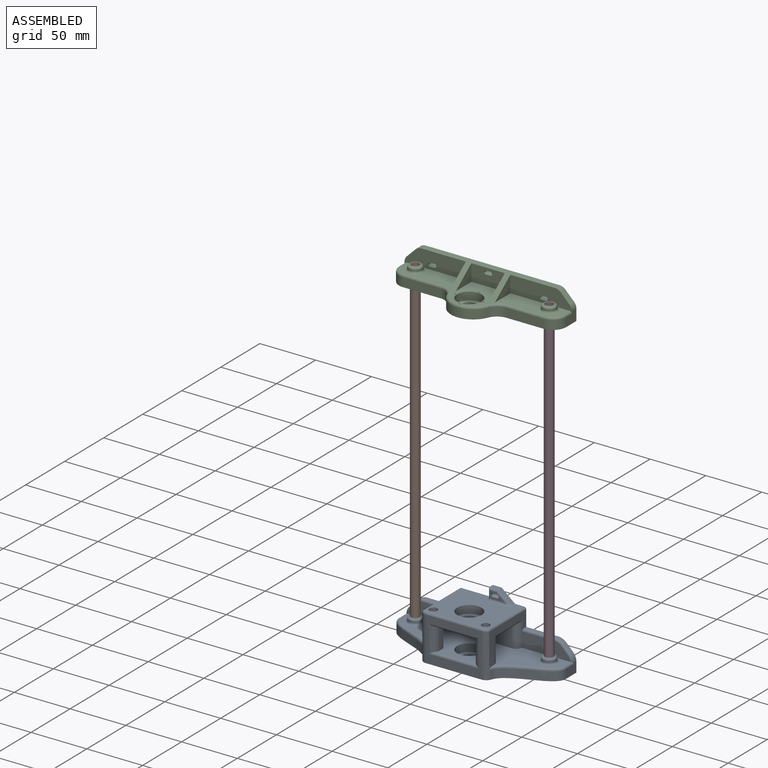
[diagram: assembled view]
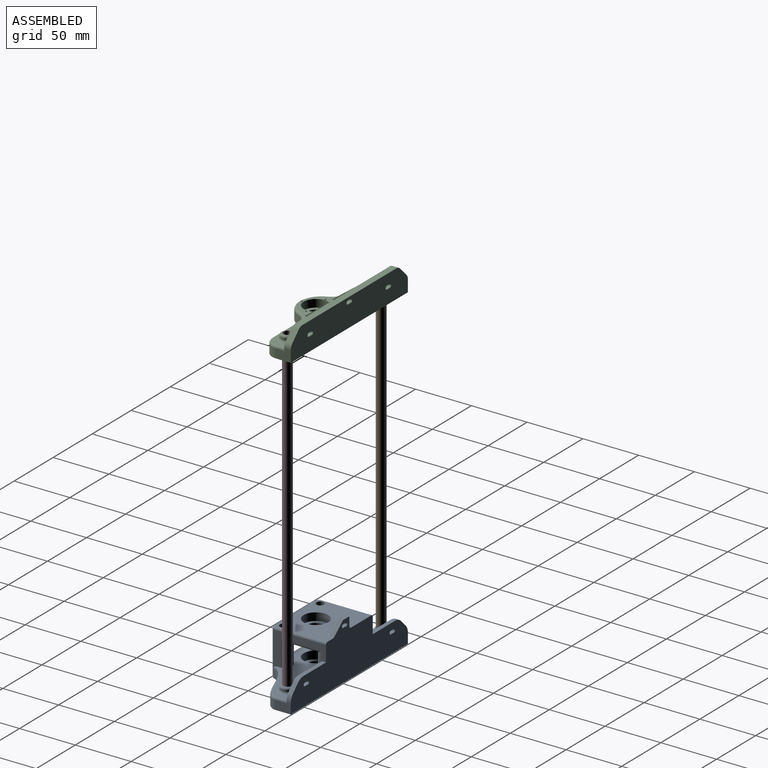
[diagram: assembled view, second angle]
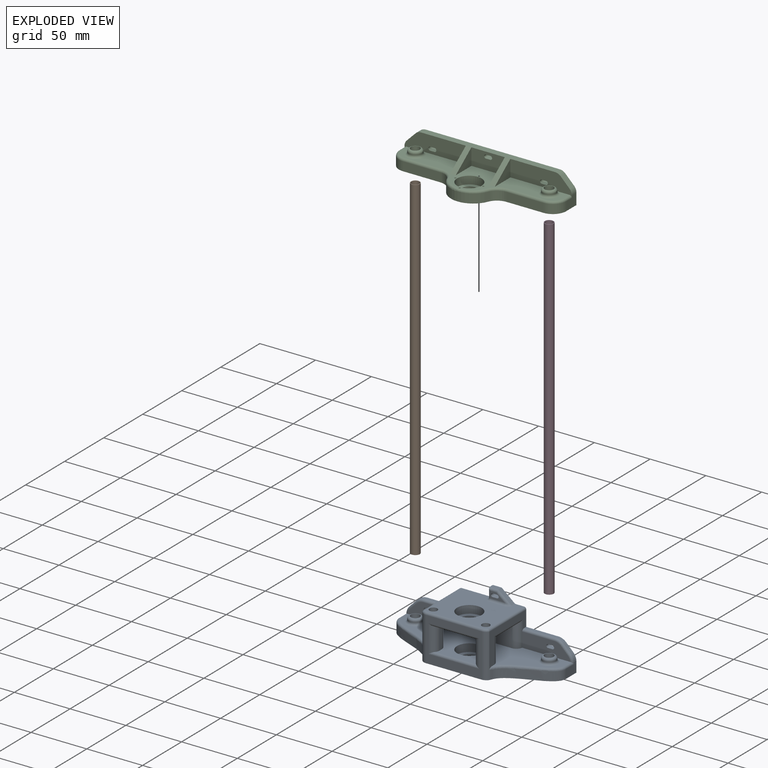
[diagram: exploded view]
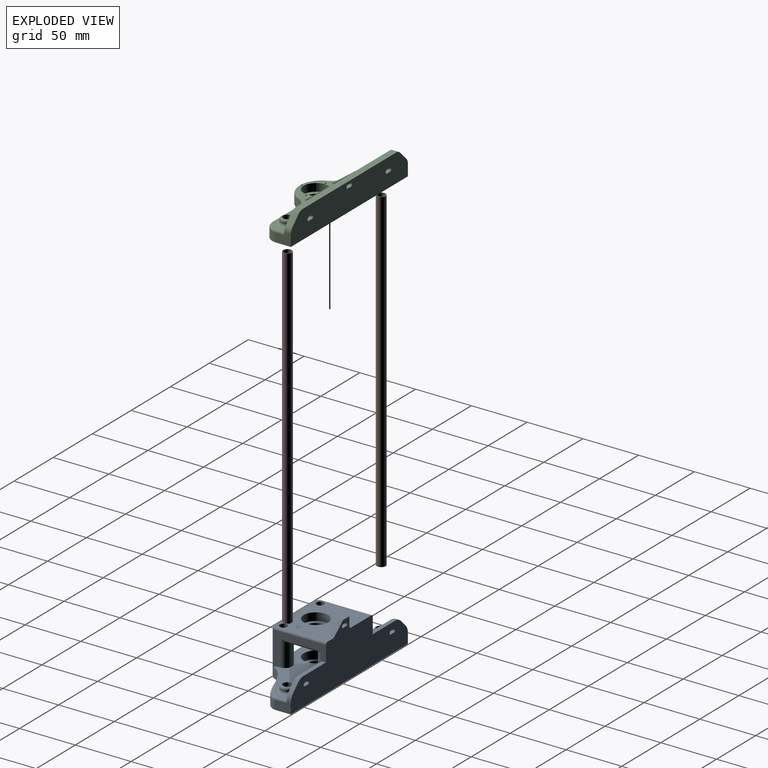
[diagram: exploded view, second angle]
ASSEMBLY  parts=4 mates=3
PART A: 104 faces, bbox 152.3x51.2x51.7 mm
  f0: plane 150x51mm, normal (0,1,0), area 4639.4mm2, adj f4,f6,f7,f13,f17,f20,f36,f37
  f1: plane 43x13mm, normal (0,-1,0), area 479.7mm2, adj f5,f49,f50,f51,f52,f65,f69,f71
  f2: plane 43x13mm, normal (0,-1,0), area 479.7mm2, adj f5,f45,f46,f47,f48,f66,f77,f79
  f3: plane 12.48x6mm, normal (0,-1,0), area 34.2mm2, adj f41,f42,f43,f44,f89,f91,f92,f93
  f4: plane 56x48mm, normal (0,0,1), area 2051.9mm2, adj f0,f28,f30,f32,f83,f84,f85,f86
  f5: plane 146x43mm, normal (0,0,1), area 3259.6mm2, adj f1,f2,f6,f7,f12,f22,f23,f24
  f6: plane 48.01x31.69mm, normal (1,0,0), area 463.3mm2, adj f0,f5,f37,f60,f66,f68,f76,f77
  f7: plane 48.01x31.69mm, normal (-1,0,0), area 463.3mm2, adj f0,f5,f36,f64,f65,f67,f69,f70
  f8: cylinder r=1.75mm len=10mm, axis (0,0,1), area 110mm2, adj f20,f33
  f9: cylinder r=1.75mm len=10mm, axis (0,0,1), area 110mm2, adj f20,f31
  f10: cylinder r=7.5mm len=15mm, axis (0,0,1), area 141.4mm2, adj f21,f29
  f11: cylinder r=7.5mm len=15mm, axis (0,0,1), area 141.4mm2, adj f20,f27
  f12: plane 48x21mm, normal (0,-1,0), area 1008mm2, adj f5,f21,f65,f66
  f13: plane 13.5x8mm, normal (-1,0,0), area 108mm2, adj f0,f14,f20,f74
  f14: extruded ~44.33x32.47mm, area 458.1mm2, adj f13,f20,f67,f72
  f15: plane 50x39mm, normal (0,-1,0), area 800.1mm2, adj f20,f59,f62,f67,f68,f86,f96,f99
  f16: extruded ~44.33x32.47mm, area 458.1mm2, adj f17,f20,f68,f78
  f17: plane 13.5x8mm, normal (1,0,0), area 108mm2, adj f0,f16,f20,f80
  f18: cylinder r=4.05mm len=15mm, axis (0,0,-1), area 381.7mm2, adj f20,f103
  f19: cylinder r=4.05mm len=15mm, axis (0,0,-1), area 381.7mm2, adj f20,f101
  f20: plane 150x50mm, normal (0,0,-1), area 5455.3mm2, adj f0,f8,f9,f11,f13,f14,f15,f16
  f21: plane 56x39.53mm, normal (0,0,-1), area 1692.3mm2, adj f10,f12,f22,f23,f24,f25,f59,f60
  f22: plane 21x1mm, normal (0,1,0), area 21mm2, adj f5,f21,f63,f64
  f23: plane 21x3mm, normal (1,0,0), area 63mm2, adj f5,f21,f62,f63
  f24: plane 21x1mm, normal (0,1,0), area 21mm2, adj f5,f21,f60,f61
  f25: plane 21x3mm, normal (-1,0,0), area 63mm2, adj f5,f21,f59,f61
  f26: cylinder r=11.05mm len=22.1mm, axis (0,0,1), area 486mm2, adj f5,f27
  f27: plane 22.1x22.1mm, normal (0,0,1), area 206.9mm2, adj f11,f26
  f28: cylinder r=11.05mm len=22.1mm, axis (0,0,1), area 486mm2, adj f4,f29
  f29: plane 22.1x22.1mm, normal (0,0,1), area 206.9mm2, adj f10,f28
  f30: cylinder r=3.5mm len=31mm, axis (0,0,1), area 681.7mm2, adj f4,f31
  f31: plane 7x7mm, normal (0,0,1), area 28.9mm2, adj f9,f30
  f32: cylinder r=3.5mm len=31mm, axis (0,0,1), area 681.7mm2, adj f4,f33
  f33: plane 7x7mm, normal (0,0,1), area 28.9mm2, adj f8,f32
  f34: cylinder r=6mm len=12mm, axis (0,0,-1), area 37.7mm2, adj f102,f103
  f35: cylinder r=6mm len=12mm, axis (0,0,-1), area 37.7mm2, adj f100,f101
  f36: plane 28.86x3mm, normal (0,0,1), area 86.6mm2, adj f0,f7,f55,f69
  f37: plane 28.86x3mm, normal (0,0,1), area 86.6mm2, adj f0,f6,f58,f77
  f38: plane 8x4mm, normal (-1,0,0), area 32mm2, adj f0,f39,f88,f89
  f39: plane 8x4mm, normal (0,0,1), area 32mm2, adj f0,f38,f40,f91
  f40: plane 11.44x9.54mm, normal (0.64,0,0.77), area 59.6mm2, adj f0,f39,f93,f95
  f41: plane 6x4mm, normal (0,0,-1), area 24mm2, adj f0,f3,f42,f43
  f42: cylinder r=1.5mm len=6mm, axis (0,1,0), area 28.3mm2, adj f0,f3,f41,f44
  f43: cylinder r=1.5mm len=6mm, axis (0,1,0), area 28.3mm2, adj f0,f3,f41,f44
  f44: plane 6x4mm, normal (0,0,1), area 24mm2, adj f0,f3,f42,f43
  f45: cylinder r=1.5mm len=5mm, axis (0,1,0), area 23.6mm2, adj f0,f2,f46,f48
  f46: plane 5x4mm, normal (0,0,-1), area 20mm2, adj f0,f2,f45,f47
  f47: cylinder r=1.5mm len=5mm, axis (0,1,0), area 23.6mm2, adj f0,f2,f46,f48
  f48: plane 5x4mm, normal (0,0,1), area 20mm2, adj f0,f2,f45,f47
  f49: cylinder r=1.5mm len=5mm, axis (0,1,0), area 23.6mm2, adj f0,f1,f50,f52
  f50: plane 5x4mm, normal (0,0,-1), area 20mm2, adj f0,f1,f49,f51
  f51: cylinder r=1.5mm len=5mm, axis (0,1,0), area 23.6mm2, adj f0,f1,f50,f52
  f52: plane 5x4mm, normal (0,0,1), area 20mm2, adj f0,f1,f49,f51
  f53: plane 6.14x6.14mm, normal (0.71,0,0.71), area 26.1mm2, adj f0,f57,f58,f81
  f54: plane 6.14x6.14mm, normal (-0.71,0,0.71), area 26.1mm2, adj f0,f55,f56,f73
  f55: cylinder r=10mm len=7.07mm, axis (0,1,0), area 23.6mm2, adj f0,f36,f54,f71
  f56: cylinder r=10mm len=7.66mm, axis (0,1,0), area 25.3mm2, adj f0,f54,f74,f75
  f57: cylinder r=10mm len=7.66mm, axis (0,-1,0), area 25.3mm2, adj f0,f53,f80,f82
  f58: cylinder r=10mm len=7.07mm, axis (0,1,0), area 23.6mm2, adj f0,f37,f53,f79
  f59: cylinder r=6mm len=25mm, axis (0,0,-1), area 208mm2, adj f5,f15,f21,f25,f96,f99
  f60: cylinder r=6mm len=23mm, axis (0,0,1), area 203mm2, adj f5,f6,f21,f24,f98
  f61: cylinder r=6mm len=21mm, axis (0,0,1), area 197.9mm2, adj f5,f21,f24,f25
  f62: cylinder r=6mm len=25mm, axis (0,0,1), area 208mm2, adj f5,f15,f21,f23,f96,f99
  f63: cylinder r=6mm len=21mm, axis (0,0,1), area 197.9mm2, adj f5,f21,f22,f23
  f64: cylinder r=6mm len=23mm, axis (0,0,1), area 203mm2, adj f5,f7,f21,f22,f97
  f65: cylinder r=6mm len=23mm, axis (0,0,-1), area 189mm2, adj f1,f5,f7,f12,f21,f69,f97
  f66: cylinder r=6mm len=23mm, axis (0,0,1), area 189mm2, adj f2,f5,f6,f12,f21,f77,f98
  f67: cylinder r=6mm len=39mm, axis (0,0,-1), area 242.5mm2, adj f7,f14,f15,f20,f70,f87
  f68: cylinder r=6mm len=39mm, axis (0,0,-1), area 242.5mm2, adj f6,f15,f16,f20,f76,f84
  f69: cylinder r=2mm len=28.94mm, axis (1,0,0), area 90.7mm2, adj f1,f7,f36,f65,f71
  f70: torus R=4mm, axis (0,0,1), area 1.3mm2, adj f7,f67,f72
  f71: torus R=8mm, axis (0,1,0), area 22.9mm2, adj f1,f55,f69,f73
  f72: bspline ~46.47x34.92mm, area 177.2mm2, adj f5,f7,f14,f70,f74
  f73: cylinder r=2mm len=7.56mm, axis (0.71,0,0.71), area 27.3mm2, adj f1,f54,f71,f75
  f74: cylinder r=2mm len=13.5mm, axis (0,-1,0), area 29.9mm2, adj f0,f5,f13,f56,f72,f75
  f75: torus R=8mm, axis (0,1,0), area 21.5mm2, adj f1,f5,f56,f73,f74
  f76: torus R=4mm, axis (0,0,1), area 1.3mm2, adj f6,f68,f78
  f77: cylinder r=2mm len=28.94mm, axis (1,0,0), area 90.7mm2, adj f2,f6,f37,f66,f79
  f78: bspline ~46.92x36.79mm, area 177.2mm2, adj f5,f6,f16,f76,f80
  f79: torus R=8mm, axis (0,1,0), area 22.9mm2, adj f2,f58,f77,f81
  f80: cylinder r=2mm len=13.5mm, axis (0,-1,0), area 29.9mm2, adj f0,f5,f17,f57,f78,f82
  f81: cylinder r=2mm len=7.56mm, axis (-0.71,0,0.71), area 27.3mm2, adj f2,f53,f79,f82
  f82: torus R=8mm, axis (0,1,0), area 21.5mm2, adj f2,f5,f57,f80,f81
  f83: cylinder r=2mm len=47.32mm, axis (0,-1,0), area 147.6mm2, adj f0,f4,f6,f84
  f84: torus R=4mm, axis (0,0,1), area 15.3mm2, adj f4,f68,f83,f86
  f85: cylinder r=2mm len=47.32mm, axis (0,1,0), area 147.6mm2, adj f0,f4,f7,f87
  f86: cylinder r=2mm len=50mm, axis (1,0,0), area 157.1mm2, adj f4,f15,f84,f87
  f87: torus R=4mm, axis (0,0,1), area 15.3mm2, adj f4,f67,f85,f86
  f88: cylinder r=2mm len=4mm, axis (0,-1,0), area 12.6mm2, adj f0,f4,f38,f90
  f89: cylinder r=2mm len=8mm, axis (0,0,-1), area 22mm2, adj f3,f38,f90,f91
  f90: torus R=4mm, axis (0,0,1), area 13.5mm2, adj f4,f88,f89,f92
  f91: cylinder r=2mm len=8mm, axis (-1,0,0), area 20.9mm2, adj f3,f39,f89,f93
  f92: cylinder r=2mm len=12.48mm, axis (1,0,0), area 39.2mm2, adj f3,f4,f90,f94
  f93: cylinder r=2mm len=12.72mm, axis (-0.77,0,0.64), area 38.1mm2, adj f3,f40,f91,f94
  f94: bspline ~7.33x4.17mm, area 14.8mm2, adj f4,f92,f93,f95
  f95: cylinder r=2mm len=4mm, axis (0,-1,0), area 5.6mm2, adj f0,f4,f40,f94
  f96: cylinder r=2mm len=46mm, axis (-1,0,0), area 130.5mm2, adj f15,f21,f59,f62
  f97: cylinder r=2mm len=37mm, axis (0,1,0), area 102.2mm2, adj f7,f21,f64,f65
  f98: cylinder r=2mm len=37mm, axis (0,-1,0), area 102.2mm2, adj f6,f21,f60,f66
  f99: cylinder r=2mm len=46mm, axis (-1,0,0), area 130.5mm2, adj f5,f15,f59,f62
  f100: torus R=8mm, axis (0,0,1), area 132.8mm2, adj f5,f35
  f101: torus R=4mm, axis (0,0,1), area 102.8mm2, adj f19,f35
  f102: torus R=8mm, axis (0,0,1), area 132.8mm2, adj f5,f34
  f103: torus R=4mm, axis (0,0,1), area 102.8mm2, adj f18,f34
PART B: 4 faces, bbox 8x8x300 mm
  f0: cylinder r=3.5mm len=300mm, axis (0,0,-1), area 6597.3mm2, adj f2,f3
  f1: cylinder r=4mm len=300mm, axis (0,0,-1), area 7539.8mm2, adj f2,f3
  f2: plane 8x8mm, normal (0,0,1), area 11.8mm2, adj f0,f1
  f3: plane 8x8mm, normal (0,0,-1), area 11.8mm2, adj f0,f1
PART C: 64 faces, bbox 152x46.6x25 mm
  f0: plane 29.95x15mm, normal (0,-1,0), area 428.4mm2, adj f1,f16,f37,f38,f39,f40,f46,f47
  f1: plane 146x36.99mm, normal (0,0,1), area 2076.8mm2, adj f0,f2,f10,f15,f17,f18,f19,f20
  f2: plane 55.03x17mm, normal (0,-1,0), area 731.1mm2, adj f1,f3,f16,f25,f32,f41,f42,f43
  f3: plane 13x10.1mm, normal (-1,0,0), area 116.6mm2, adj f2,f11,f12,f27,f51,f55
  f4: plane 33.34x8mm, normal (0,-1,0), area 266.7mm2, adj f12,f27,f28,f57
  f5: cylinder r=20mm len=37.08mm, axis (0,0,-1), area 379.6mm2, adj f12,f28,f29,f59
  f6: plane 33.34x8mm, normal (0,-1,0), area 266.7mm2, adj f12,f29,f30,f61
  f7: plane 13x10.1mm, normal (1,0,0), area 116.6mm2, adj f11,f12,f15,f30,f54,f63
  f8: cylinder r=4.05mm len=15mm, axis (0,0,-1), area 381.7mm2, adj f12,f26
  f9: cylinder r=4.05mm len=15mm, axis (0,0,-1), area 381.7mm2, adj f12,f24
  f10: cylinder r=11.05mm len=22.1mm, axis (0,0,-1), area 486mm2, adj f1,f14
  f11: plane 150x25mm, normal (0,1,0), area 3539.3mm2, adj f3,f7,f12,f16,f31,f32,f33,f34
  f12: plane 150x45mm, normal (0,0,-1), area 4061mm2, adj f3,f4,f5,f6,f7,f8,f9,f11
  f13: cylinder r=7.5mm len=15mm, axis (0,0,-1), area 141.4mm2, adj f12,f14
  f14: plane 22.1x22.1mm, normal (0,0,1), area 206.9mm2, adj f10,f13
  f15: plane 55.03x17mm, normal (0,-1,0), area 731.1mm2, adj f1,f7,f16,f23,f31,f33,f34,f35
  f16: plane 120.2x6mm, normal (0,0,1), area 721.2mm2, adj f0,f2,f11,f15,f49,f50,f52,f53
  f17: cylinder r=0.75mm len=10mm, axis (0,0,1), area 47.1mm2, adj f1,f12,f59
  f18: cylinder r=0.75mm len=10mm, axis (0,0,1), area 47.1mm2, adj f1,f12
  f19: cylinder r=0.75mm len=10mm, axis (0,0,1), area 47.1mm2, adj f1,f12
  f20: cylinder r=0.75mm len=10mm, axis (0,0,1), area 47.1mm2, adj f1,f12
  f21: cylinder r=6mm len=12mm, axis (0,0,-1), area 37.7mm2, adj f25,f26
  f22: cylinder r=6mm len=12mm, axis (0,0,-1), area 37.7mm2, adj f23,f24
  f23: torus R=8mm, axis (0,0,1), area 130.9mm2, adj f1,f15,f22
  f24: torus R=4mm, axis (0,0,1), area 102.8mm2, adj f9,f22
  f25: torus R=8mm, axis (0,0,1), area 130.9mm2, adj f1,f2,f21
  f26: torus R=4mm, axis (0,0,1), area 102.8mm2, adj f8,f21
  f27: cylinder r=12mm len=12mm, axis (0,0,1), area 150.8mm2, adj f3,f4,f12,f56
  f28: cylinder r=12mm len=11.12mm, axis (0,0,-1), area 113.9mm2, adj f4,f5,f12,f58
  f29: cylinder r=12mm len=11.12mm, axis (0,0,-1), area 113.9mm2, adj f5,f6,f12,f60
  f30: cylinder r=12mm len=12mm, axis (0,0,-1), area 150.8mm2, adj f6,f7,f12,f62
  f31: plane 7.9x7.9mm, normal (0.71,0,0.71), area 67mm2, adj f11,f15,f52,f54
  f32: plane 7.9x7.9mm, normal (-0.71,0,0.71), area 67mm2, adj f2,f11,f51,f53
  f33: plane 6x4mm, normal (0,0,-1), area 24mm2, adj f11,f15,f34,f36
  f34: cylinder r=1.6mm len=6mm, axis (0,-1,0), area 30.2mm2, adj f11,f15,f33,f35
  f35: plane 6x4mm, normal (0,0,1), area 24mm2, adj f11,f15,f34,f36
  f36: cylinder r=1.6mm len=6mm, axis (0,-1,0), area 30.2mm2, adj f11,f15,f33,f35
  f37: plane 6x4mm, normal (0,0,-1), area 24mm2, adj f0,f11,f38,f40
  f38: cylinder r=1.6mm len=6mm, axis (0,-1,0), area 30.2mm2, adj f0,f11,f37,f39
  f39: plane 6x4mm, normal (0,0,1), area 24mm2, adj f0,f11,f38,f40
  f40: cylinder r=1.6mm len=6mm, axis (0,-1,0), area 30.2mm2, adj f0,f11,f37,f39
  f41: plane 6x4mm, normal (0,0,-1), area 24mm2, adj f2,f11,f42,f44
  f42: cylinder r=1.6mm len=6mm, axis (0,-1,0), area 30.2mm2, adj f2,f11,f41,f43
  f43: plane 6x4mm, normal (0,0,1), area 24mm2, adj f2,f11,f42,f44
  f44: cylinder r=1.6mm len=6mm, axis (0,-1,0), area 30.2mm2, adj f2,f11,f41,f43
  f45: plane 20x15mm, normal (-1,0,0), area 150mm2, adj f1,f2,f50
  f46: plane 20x15mm, normal (1,0,0), area 150mm2, adj f0,f1,f50
  f47: plane 20x15mm, normal (-1,0,0), area 150mm2, adj f0,f1,f49
  f48: plane 20x15mm, normal (1,0,0), area 150mm2, adj f1,f15,f49
  f49: plane 20x15mm, normal (0,-0.6,0.8), area 125mm2, adj f1,f16,f47,f48
  f50: plane 20x15mm, normal (0,-0.6,0.8), area 125mm2, adj f1,f16,f45,f46
  f51: cylinder r=7mm len=6mm, axis (0,-1,0), area 33mm2, adj f2,f3,f11,f32
  f52: cylinder r=7mm len=6mm, axis (0,1,0), area 33mm2, adj f11,f15,f16,f31
  f53: cylinder r=7mm len=6mm, axis (0,1,0), area 33mm2, adj f2,f11,f16,f32
  f54: cylinder r=7mm len=6mm, axis (0,1,0), area 33mm2, adj f7,f11,f15,f31
  f55: cylinder r=2mm len=7mm, axis (0,1,0), area 22mm2, adj f1,f2,f3,f56
  f56: torus R=10mm, axis (0,0,1), area 55.6mm2, adj f1,f27,f55,f57
  f57: cylinder r=2mm len=33.34mm, axis (-1,0,0), area 104.7mm2, adj f1,f4,f56,f58
  f58: torus R=14mm, axis (0,0,1), area 47.4mm2, adj f1,f28,f57,f59
  f59: torus R=18mm, axis (0,0,1), area 143.4mm2, adj f1,f5,f17,f58,f60
  f60: torus R=14mm, axis (0,0,1), area 47.4mm2, adj f1,f29,f59,f61
  f61: cylinder r=2mm len=33.34mm, axis (-1,0,0), area 104.7mm2, adj f1,f6,f60,f62
  f62: torus R=10mm, axis (0,0,1), area 55.6mm2, adj f1,f30,f61,f63
  f63: cylinder r=2mm len=7mm, axis (0,-1,0), area 22mm2, adj f1,f7,f15,f62
PART D: same geometry as B
PLACE A t=(0,-19.24,0)mm fixed
PLACE B t=(-60,-7.74,0)mm
PLACE C t=(0,-16.74,285)mm
PLACE D t=(60,-7.74,0)mm
MATE fastened C.f9 <-> D.f1  axis (0,0,1) through (60,-7.74,300)mm
MATE fastened A.f18 <-> B.f1  axis (0,0,-1) through (-60,-7.74,0)mm
MATE fastened D.f1 <-> A.f19  axis (0,0,-1) through (60,-7.74,0)mm
